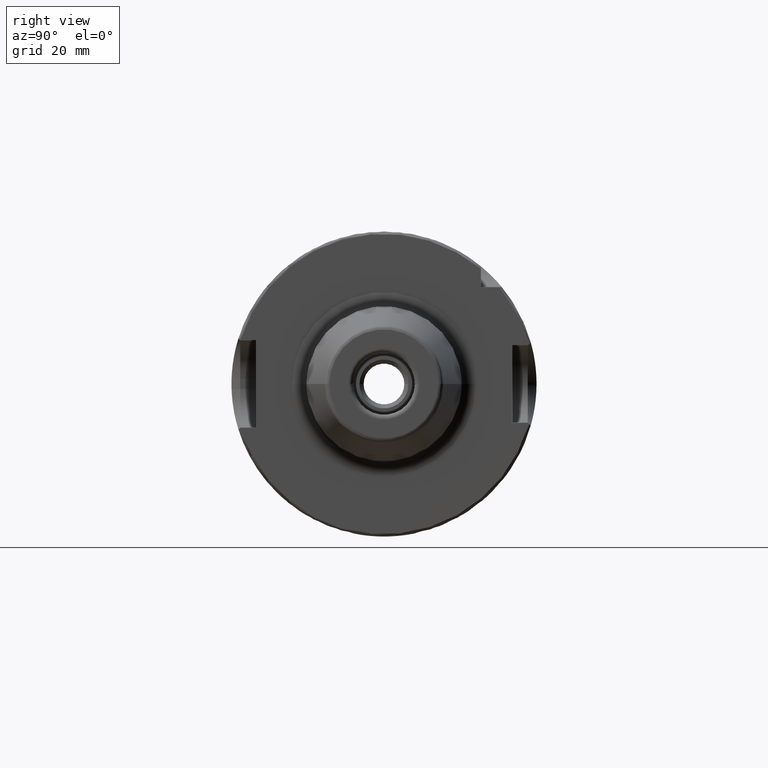
[diagram: clean part render]
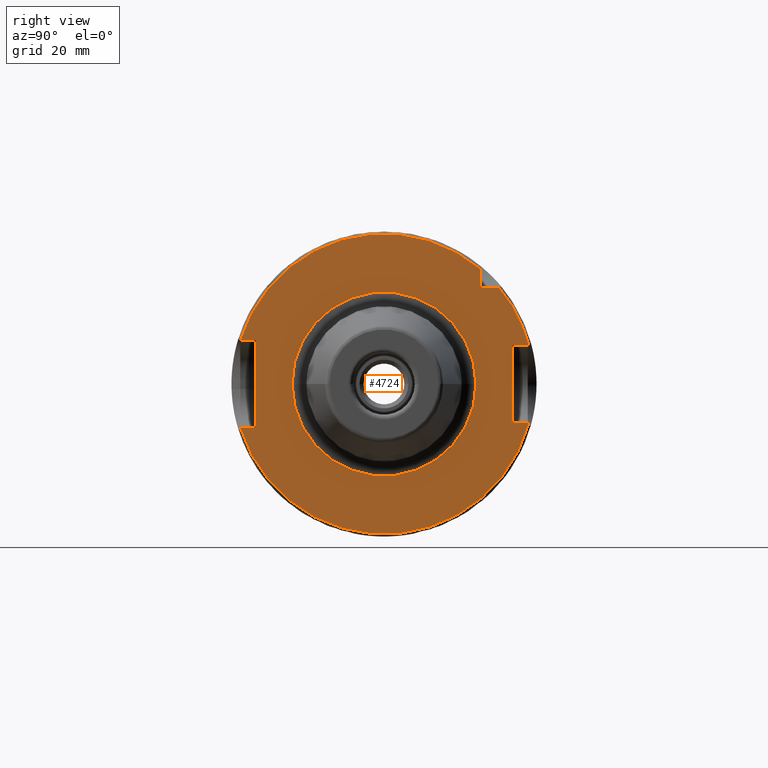
[diagram: same view with one face highlighted and labeled with its STEP entity id]
A machine part, right view. The second image highlights one B-rep face of the part: STEP entity #4724.
In plain terms, the highlighted planar face has unit normal (1, 0, 0).
Its self-contained STEP definition (entity closure, byte-faithful):
#1292=DIRECTION('',(0.E0,1.E0,0.E0));
#1293=VECTOR('',#1292,1.245981869442E-1);
#1294=CARTESIAN_POINT('',(1.023622047244E0,-1.167905273558E0,
-3.543307086614E-1));
#1295=LINE('',#1294,#1293);
#1296=DIRECTION('',(0.E0,0.E0,1.E0));
#1297=VECTOR('',#1296,7.086614173228E-1);
#1298=CARTESIAN_POINT('',(1.023622047244E0,-1.043307086614E0,
-3.543307086614E-1));
#1299=LINE('',#1298,#1297);
#1300=DIRECTION('',(0.E0,1.E0,0.E0));
#1301=VECTOR('',#1300,1.245981869442E-1);
#1302=CARTESIAN_POINT('',(1.023622047244E0,-1.167905273558E0,
3.543307086614E-1));
#1303=LINE('',#1302,#1301);
#1304=DIRECTION('',(0.E0,0.E0,-1.E0));
#1305=VECTOR('',#1304,1.450960064824E-1);
#1306=CARTESIAN_POINT('',(1.023622047244E0,7.874015748031E-1,
9.324975812856E-1));
#1307=LINE('',#1306,#1305);
#1308=DIRECTION('',(0.E0,-1.E0,0.E0));
#1309=VECTOR('',#1308,1.450960064824E-1);
#1310=CARTESIAN_POINT('',(1.023622047244E0,9.324975812856E-1,
7.874015748031E-1));
#1311=LINE('',#1310,#1309);
#1312=DIRECTION('',(0.E0,-7.071067811866E-1,-7.071067811865E-1));
#1313=VECTOR('',#1312,1.095285451143E-2);
#1314=CARTESIAN_POINT('',(1.023622047244E0,1.177036176281E0,3.227054676196E-1));
#1315=LINE('',#1314,#1313);
#1316=DIRECTION('',(0.E0,-1.E0,0.E0));
#1317=VECTOR('',#1316,1.259842519685E-1);
#1318=CARTESIAN_POINT('',(1.023622047244E0,1.169291338583E0,3.149606299213E-1));
#1319=LINE('',#1318,#1317);
#1320=DIRECTION('',(0.E0,0.E0,1.E0));
#1321=VECTOR('',#1320,6.299212598425E-1);
#1322=CARTESIAN_POINT('',(1.023622047244E0,1.043307086614E0,
-3.149606299213E-1));
#1323=LINE('',#1322,#1321);
#1324=DIRECTION('',(0.E0,-1.E0,0.E0));
#1325=VECTOR('',#1324,1.259842519685E-1);
#1326=CARTESIAN_POINT('',(1.023622047244E0,1.169291338583E0,
-3.149606299213E-1));
#1327=LINE('',#1326,#1325);
#1328=DIRECTION('',(0.E0,-7.071067811866E-1,7.071067811865E-1));
#1329=VECTOR('',#1328,1.095285451143E-2);
#1330=CARTESIAN_POINT('',(1.023622047244E0,1.177036176281E0,
-3.227054676196E-1));
#1331=LINE('',#1330,#1329);
#1332=CARTESIAN_POINT('',(1.023622047244E0,0.E0,0.E0));
#1333=DIRECTION('',(1.E0,0.E0,0.E0));
#1334=DIRECTION('',(0.E0,-1.E0,0.E0));
#1335=AXIS2_PLACEMENT_3D('',#1332,#1333,#1334);
#1337=CARTESIAN_POINT('',(1.023622047244E0,0.E0,0.E0));
#1338=DIRECTION('',(1.E0,0.E0,0.E0));
#1339=DIRECTION('',(0.E0,1.E0,0.E0));
#1340=AXIS2_PLACEMENT_3D('',#1337,#1338,#1339);
#1347=CARTESIAN_POINT('',(1.023622047244E0,0.E0,0.E0));
#1348=DIRECTION('',(1.E0,0.E0,0.E0));
#1349=DIRECTION('',(0.E0,-9.569288370446E-1,-2.903225806452E-1));
#1350=AXIS2_PLACEMENT_3D('',#1347,#1348,#1349);
#1472=CARTESIAN_POINT('',(1.023622047244E0,1.177036176281E0,
-3.227054676196E-1));
#1815=CARTESIAN_POINT('',(1.023622047244E0,-1.167905273558E0,
3.543307086614E-1));
#1950=CARTESIAN_POINT('',(1.023622047244E0,-1.167905273558E0,
-3.543307086614E-1));
#2143=CARTESIAN_POINT('',(1.023622047244E0,1.177036176281E0,3.227054676196E-1));
#2162=CARTESIAN_POINT('',(1.023622047244E0,0.E0,0.E0));
#2163=DIRECTION('',(1.E0,0.E0,0.E0));
#2164=DIRECTION('',(0.E0,9.644102863722E-1,2.644102863722E-1));
#2165=AXIS2_PLACEMENT_3D('',#2162,#2163,#2164);
#2167=CARTESIAN_POINT('',(1.023622047244E0,9.324975812856E-1,
7.874015748031E-1));
#2192=CARTESIAN_POINT('',(1.023622047244E0,7.874015748031E-1,
9.324975812856E-1));
#2207=CARTESIAN_POINT('',(1.023622047244E0,0.E0,0.E0));
#2208=DIRECTION('',(1.E0,0.E0,0.E0));
#2209=DIRECTION('',(0.E0,6.451612903226E-1,7.640464053114E-1));
#2210=AXIS2_PLACEMENT_3D('',#2207,#2208,#2209);
#2795=CARTESIAN_POINT('',(1.023622047244E0,1.043307086614E0,
-3.149606299213E-1));
#2796=CARTESIAN_POINT('',(1.023622047244E0,1.043307086614E0,3.149606299213E-1));
#2797=VERTEX_POINT('',#2795);
#2798=VERTEX_POINT('',#2796);
#2827=CARTESIAN_POINT('',(1.023622047244E0,-1.043307086614E0,
-3.543307086614E-1));
#2828=CARTESIAN_POINT('',(1.023622047244E0,-1.043307086614E0,
3.543307086614E-1));
#2829=VERTEX_POINT('',#2827);
#2830=VERTEX_POINT('',#2828);
#2885=CARTESIAN_POINT('',(1.023622047244E0,7.874015748031E-1,
7.874015748031E-1));
#2886=VERTEX_POINT('',#2885);
#3078=CARTESIAN_POINT('',(1.023622047244E0,1.169291338583E0,
-3.149606299213E-1));
#3079=VERTEX_POINT('',#3078);
#3080=CARTESIAN_POINT('',(1.023622047244E0,1.169291338583E0,3.149606299213E-1));
#3081=VERTEX_POINT('',#3080);
#3094=VERTEX_POINT('',#1950);
#3095=VERTEX_POINT('',#1472);
#3098=VERTEX_POINT('',#2143);
#3099=VERTEX_POINT('',#2167);
#3102=VERTEX_POINT('',#2192);
#3103=VERTEX_POINT('',#1815);
#3242=CARTESIAN_POINT('',(1.023622047244E0,-7.48E-1,0.E0));
#3243=CARTESIAN_POINT('',(1.023622047244E0,7.48E-1,0.E0));
#3244=VERTEX_POINT('',#3242);
#3245=VERTEX_POINT('',#3243);
#4686=CARTESIAN_POINT('',(1.023622047244E0,0.E0,0.E0));
#4687=DIRECTION('',(1.E0,0.E0,0.E0));
#4688=DIRECTION('',(0.E0,0.E0,1.E0));
#4689=AXIS2_PLACEMENT_3D('',#4686,#4687,#4688);
#4690=PLANE('',#4689);
#4692=ORIENTED_EDGE('',*,*,#4691,.F.);
#4694=ORIENTED_EDGE('',*,*,#4693,.T.);
#4696=ORIENTED_EDGE('',*,*,#4695,.T.);
#4698=ORIENTED_EDGE('',*,*,#4697,.F.);
#4700=ORIENTED_EDGE('',*,*,#4699,.F.);
#4702=ORIENTED_EDGE('',*,*,#4701,.T.);
#4704=ORIENTED_EDGE('',*,*,#4703,.F.);
#4706=ORIENTED_EDGE('',*,*,#4705,.F.);
#4708=ORIENTED_EDGE('',*,*,#4707,.T.);
#4710=ORIENTED_EDGE('',*,*,#4709,.T.);
#4712=ORIENTED_EDGE('',*,*,#4711,.F.);
#4714=ORIENTED_EDGE('',*,*,#4713,.F.);
#4716=ORIENTED_EDGE('',*,*,#4715,.F.);
#4717=EDGE_LOOP('',(#4692,#4694,#4696,#4698,#4700,#4702,#4704,#4706,#4708,#4710,
#4712,#4714,#4716));
#4718=FACE_OUTER_BOUND('',#4717,.F.);
#4719=ORIENTED_EDGE('',*,*,#4676,.T.);
#4721=ORIENTED_EDGE('',*,*,#4720,.T.);
#4722=EDGE_LOOP('',(#4719,#4721));
#4723=FACE_BOUND('',#4722,.F.);
#4724=ADVANCED_FACE('',(#4718,#4723),#4690,.T.);
#1336=CIRCLE('',#1335,7.48E-1);
#1341=CIRCLE('',#1340,7.48E-1);
#1351=CIRCLE('',#1350,1.220472440945E0);
#2166=CIRCLE('',#2165,1.220472440945E0);
#2211=CIRCLE('',#2210,1.220472440945E0);
#4676=EDGE_CURVE('',#3244,#3245,#1336,.T.);
#4691=EDGE_CURVE('',#3094,#3095,#1351,.T.);
#4693=EDGE_CURVE('',#3094,#2829,#1295,.T.);
#4695=EDGE_CURVE('',#2829,#2830,#1299,.T.);
#4697=EDGE_CURVE('',#3103,#2830,#1303,.T.);
#4699=EDGE_CURVE('',#3102,#3103,#2211,.T.);
#4701=EDGE_CURVE('',#3102,#2886,#1307,.T.);
#4703=EDGE_CURVE('',#3099,#2886,#1311,.T.);
#4705=EDGE_CURVE('',#3098,#3099,#2166,.T.);
#4707=EDGE_CURVE('',#3098,#3081,#1315,.T.);
#4709=EDGE_CURVE('',#3081,#2798,#1319,.T.);
#4711=EDGE_CURVE('',#2797,#2798,#1323,.T.);
#4713=EDGE_CURVE('',#3079,#2797,#1327,.T.);
#4715=EDGE_CURVE('',#3095,#3079,#1331,.T.);
#4720=EDGE_CURVE('',#3245,#3244,#1341,.T.);